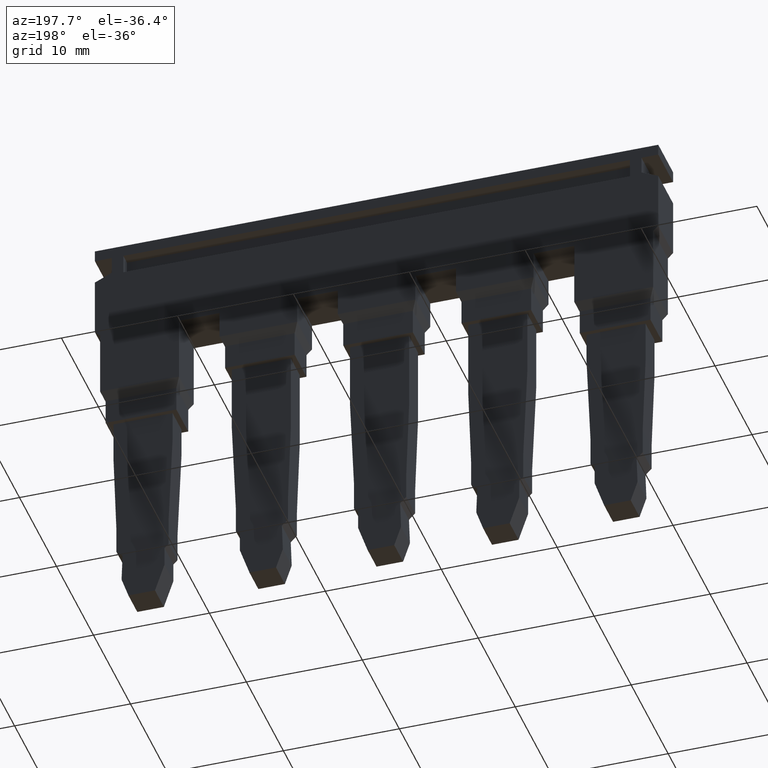
[diagram: clean part render]
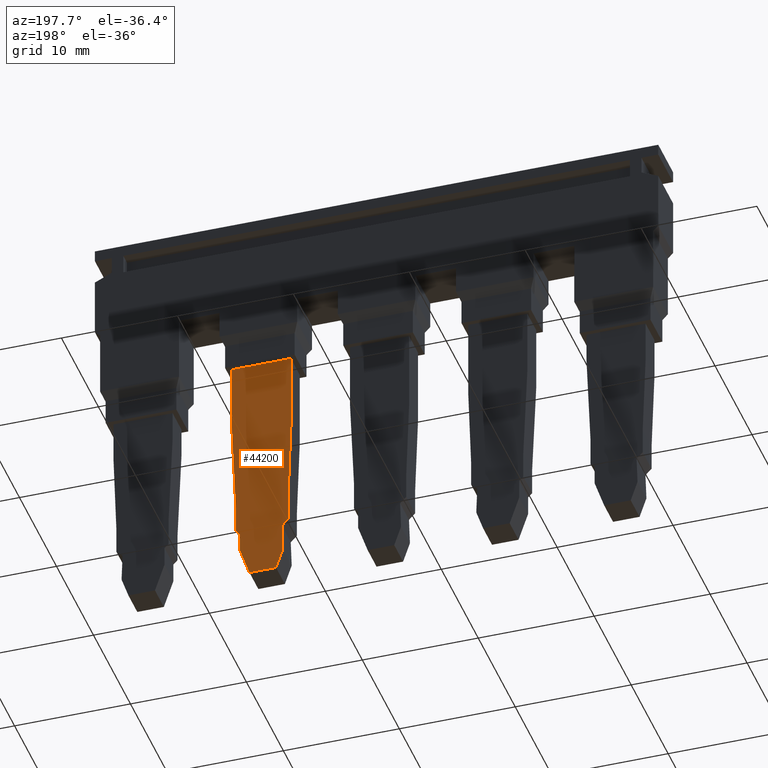
[diagram: same view with one face highlighted and labeled with its STEP entity id]
A machine part, auxiliary view. The second image highlights one B-rep face of the part: STEP entity #44200.
In plain terms, the highlighted planar face has unit normal (-0, -1, -0).
Its self-contained STEP definition (entity closure, byte-faithful):
#21070=CARTESIAN_POINT('',(-3.20000000012801,25.8999997693718,
-7.57500000163257));
#21080=VERTEX_POINT('',#21070);
#21110=CARTESIAN_POINT('',(-3.20000000012802,25.8999997693718,-15.225));
#21120=DIRECTION('',(1.77975831145923E-16,-1.16743491185646E-16,1.));
#21130=VECTOR('',#21120,1.);
#21140=LINE('',#21110,#21130);
#21150=CARTESIAN_POINT('',(-3.20000000012801,25.8999997693718,
-2.47500000163263));
#21160=VERTEX_POINT('',#21150);
#21170=EDGE_CURVE('',#21080,#21160,#21140,.T.);
#43100=CARTESIAN_POINT('',(-3.2000000001494,30.790843205235,
-14.5178932204461));
#43110=DIRECTION('',(-1.,-4.37230317964272E-12,1.77975831145412E-16));
#43120=DIRECTION('',(1.77975831145412E-16,7.78188944319931E-28,1.));
#43130=AXIS2_PLACEMENT_3D('',#43100,#43110,#43120);
#43140=PLANE('',#43130);
#43150=CARTESIAN_POINT('',(-3.2000000001494,30.790843205235,
-28.583301597189));
#43160=DIRECTION('',(3.09181107564596E-12,-0.707106781186548,
0.707106781186547));
#43170=VECTOR('',#43160,1.);
#43180=LINE('',#43150,#43170);
#43190=CARTESIAN_POINT('',(-3.20000000005645,9.53254160967862,
-7.32500000163264));
#43200=VERTEX_POINT('',#43190);
#43210=CARTESIAN_POINT('',(-3.20000000005414,9.00443748278208,
-6.79689587473608));
#43220=VERTEX_POINT('',#43210);
#43230=EDGE_CURVE('',#43200,#43220,#43180,.T.);
#43240=ORIENTED_EDGE('',*,*,#43230,.F.);
#43250=CARTESIAN_POINT('',(-3.20000000012218,24.5659443926081,
-6.25347607899381));
#43260=DIRECTION('',(-4.36963347941443E-12,0.999390827019096,
0.0348994967025009));
#43270=VECTOR('',#43260,1.);
#43280=LINE('',#43250,#43270);
#43290=CARTESIAN_POINT('',(-3.20000000004364,6.60160096190263,
-6.88080477500807));
#43300=VERTEX_POINT('',#43290);
#43310=EDGE_CURVE('',#43300,#43220,#43280,.T.);
#43320=ORIENTED_EDGE('',*,*,#43310,.T.);
#43330=CARTESIAN_POINT('',(-3.20000000012218,24.5659443926081,
-12.9352017424938));
#43340=DIRECTION('',(4.14337877555433E-12,-0.94762914753996,
0.3193728209048));
#43350=VECTOR('',#43340,1.);
#43360=LINE('',#43330,#43350);
#43370=CARTESIAN_POINT('',(-3.20000000003598,4.84999976941253,
-6.29047488129595));
#43380=VERTEX_POINT('',#43370);
#43390=EDGE_CURVE('',#43300,#43380,#43360,.T.);
#43400=ORIENTED_EDGE('',*,*,#43390,.F.);
#43410=CARTESIAN_POINT('',(-3.20000000003598,4.84999976941253,
4.30737639223574));
#43420=DIRECTION('',(1.77975831146408E-16,-2.2776579365012E-16,1.));
#43430=VECTOR('',#43420,1.);
#43440=LINE('',#43410,#43430);
#43450=CARTESIAN_POINT('',(-3.20000000003598,4.84999976941252,
-4.00070635864802));
#43460=VERTEX_POINT('',#43450);
#43470=EDGE_CURVE('',#43380,#43460,#43440,.T.);
#43480=ORIENTED_EDGE('',*,*,#43470,.F.);
#43490=CARTESIAN_POINT('',(-3.20000000012218,24.5659443926081,
2.64402050254986));
#43500=DIRECTION('',(-4.14326509426784E-12,0.947629147539959,
0.319372820904801));
#43510=VECTOR('',#43500,1.);
#43520=LINE('',#43490,#43510);
#43530=CARTESIAN_POINT('',(-3.20000000004669,7.29999976941252,
-3.17500000163269));
#43540=VERTEX_POINT('',#43530);
#43550=EDGE_CURVE('',#43460,#43540,#43520,.T.);
#43560=ORIENTED_EDGE('',*,*,#43550,.F.);
#43570=CARTESIAN_POINT('',(-3.20000000012218,24.5659443926081,
-3.17500000163268));
#43580=DIRECTION('',(-4.37230317964272E-12,1.,4.55531587304066E-16));
#43590=VECTOR('',#43580,1.);
#43600=LINE('',#43570,#43590);
#43610=CARTESIAN_POINT('',(-3.20000000005412,8.9999997694125,
-3.17500000163269));
#43620=VERTEX_POINT('',#43610);
#43630=EDGE_CURVE('',#43540,#43620,#43600,.T.);
#43640=ORIENTED_EDGE('',*,*,#43630,.F.);
#43650=CARTESIAN_POINT('',(-3.2000000000864,16.382376163278,
4.20737639223576));
#43660=DIRECTION('',(-3.09155937981117E-12,0.707106781186408,
0.707106781186687));
#43670=VECTOR('',#43660,1.);
#43680=LINE('',#43650,#43670);
#43690=CARTESIAN_POINT('',(-3.20000000005565,9.34999976941243,
-2.82500000163262));
#43700=VERTEX_POINT('',#43690);
#43710=EDGE_CURVE('',#43620,#43700,#43680,.T.);
#43720=ORIENTED_EDGE('',*,*,#43710,.F.);
#43730=CARTESIAN_POINT('',(-3.20000000012218,24.5659443926081,
-2.82500000163262));
#43740=DIRECTION('',(4.37230317964272E-12,-1.,-3.44509284841146E-16));
#43750=VECTOR('',#43740,1.);
#43760=LINE('',#43730,#43750);
#43770=CARTESIAN_POINT('',(-3.20000000006615,11.7500240471686,
-2.82500000163262));
#43780=VERTEX_POINT('',#43770);
#43790=EDGE_CURVE('',#43780,#43700,#43760,.T.);
#43800=ORIENTED_EDGE('',*,*,#43790,.T.);
#43810=CARTESIAN_POINT('',(-3.20000000012218,24.5659443926081,
-2.28348038888409));
#43820=DIRECTION('',(-4.36839779041031E-12,0.999108507428431,
0.0422159967800467));
#43830=VECTOR('',#43820,1.);
#43840=LINE('',#43810,#43830);
#43850=CARTESIAN_POINT('',(-3.20000000010236,20.0333290564494,
-2.47500000163263));
#43860=VERTEX_POINT('',#43850);
#43870=EDGE_CURVE('',#43780,#43860,#43840,.T.);
#43880=ORIENTED_EDGE('',*,*,#43870,.F.);
#43890=CARTESIAN_POINT('',(-3.20000000012218,24.5659443926042,
-2.47500000163263));
#43900=DIRECTION('',(-4.37230317964272E-12,1.,5.66553889766582E-16));
#43910=VECTOR('',#43900,1.);
#43920=LINE('',#43890,#43910);
#43930=EDGE_CURVE('',#43860,#21160,#43920,.T.);
#43940=ORIENTED_EDGE('',*,*,#43930,.F.);
#43950=ORIENTED_EDGE('',*,*,#21170,.T.);
#43960=CARTESIAN_POINT('',(-3.20000000012218,24.5659443926042,
-7.57500000163257));
#43970=DIRECTION('',(4.37230317964272E-12,-1.,-5.66553889766582E-16));
#43980=VECTOR('',#43970,1.);
#43990=LINE('',#43960,#43980);
#44000=CARTESIAN_POINT('',(-3.20000000009745,18.909087367895,
-7.57500000163257));
#44010=VERTEX_POINT('',#44000);
#44020=EDGE_CURVE('',#21080,#44010,#43990,.T.);
#44030=ORIENTED_EDGE('',*,*,#44020,.F.);
#44040=CARTESIAN_POINT('',(-3.20000000012218,24.5659443926081,
-7.77254180184038));
#44050=DIRECTION('',(4.36964590194829E-12,-0.999390827019096,
0.0348994967025043));
#44060=VECTOR('',#44050,1.);
#44070=LINE('',#44040,#44060);
#44080=CARTESIAN_POINT('',(-3.20000000006615,11.7500240471686,
-7.32500000163264));
#44090=VERTEX_POINT('',#44080);
#44100=EDGE_CURVE('',#44010,#44090,#44070,.T.);
#44110=ORIENTED_EDGE('',*,*,#44100,.F.);
#44120=CARTESIAN_POINT('',(-3.2000000001494,30.790843205235,
-7.32500000163263));
#44130=DIRECTION('',(4.37230317964272E-12,-1.,-2.27765793650851E-16));
#44140=VECTOR('',#44130,1.);
#44150=LINE('',#44120,#44140);
#44160=EDGE_CURVE('',#44090,#43200,#44150,.T.);
#44170=ORIENTED_EDGE('',*,*,#44160,.F.);
#44180=EDGE_LOOP('',(#44170,#44110,#44030,#43950,#43940,#43880,#43800,
#43720,#43640,#43560,#43480,#43400,#43320,#43240));
#44190=FACE_OUTER_BOUND('',#44180,.T.);
#44200=ADVANCED_FACE('',(#44190),#43140,.F.);